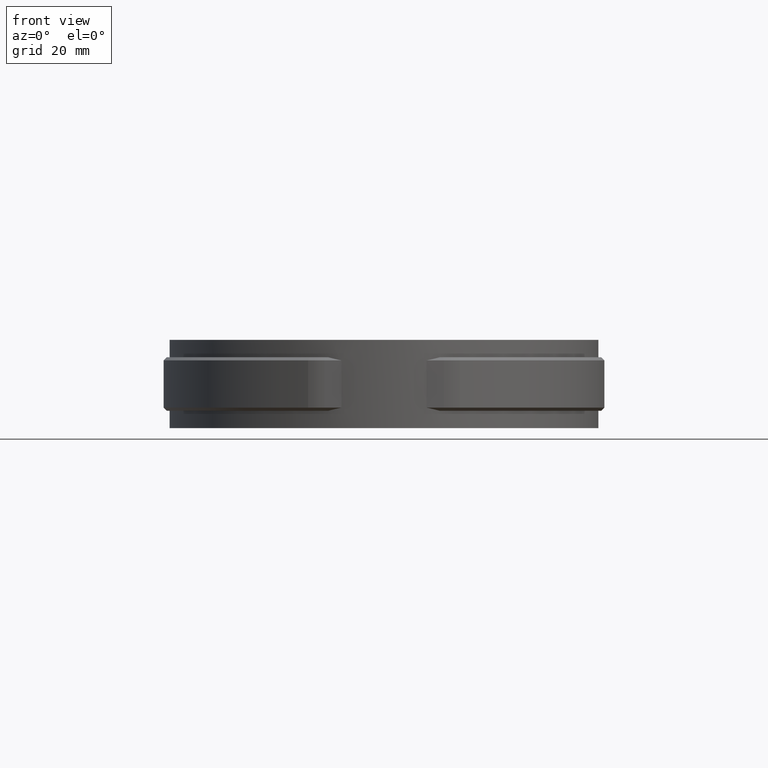
[diagram: clean part render]
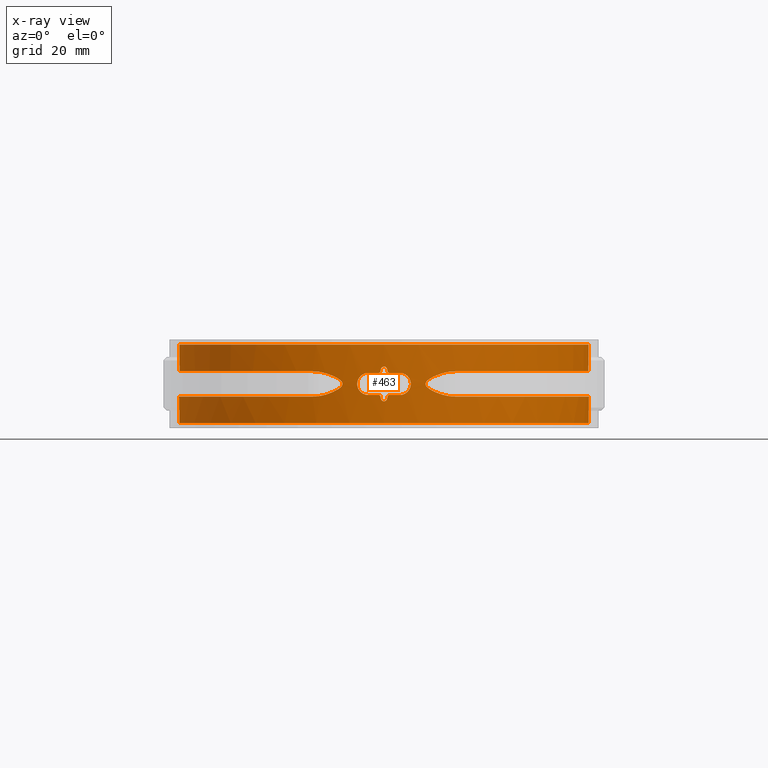
[diagram: x-ray — body ghosted, one internal face saturated and labeled with its STEP entity id]
A machine part, front view, then the same camera in x-ray: the body is ghosted and one INTERNAL B-rep face — a face not visible from any outside direction — is saturated and labeled: STEP entity #463.
In plain terms, the highlighted cylindrical surface (partial cylindrical patch) has radius 65 mm, axis along (0, 0, -1).
Its self-contained STEP definition (entity closure, byte-faithful):
#463 = ADVANCED_FACE( '', ( #815, #816 ), #817, .F. );
#815 = FACE_BOUND( '', #1555, .T. );
#816 = FACE_OUTER_BOUND( '', #1556, .T. );
#817 = CYLINDRICAL_SURFACE( '', #1557, 65.0000000000000 );
#1555 = EDGE_LOOP( '', ( #3140, #3141, #3142, #3143, #3144, #3145, #3146, #3147, #3148, #3149, #3150, #3151, #3152, #3153, #3154, #3155 ) );
#1556 = EDGE_LOOP( '', ( #3156, #3157, #3158, #3159, #3160, #3161, #3162, #3163, #3164, #3165, #3166, #3167, #3168, #3169, #3170, #3171 ) );
#1557 = AXIS2_PLACEMENT_3D( '', #3172, #3173, #3174 );
#3140 = ORIENTED_EDGE( '', *, *, #6882, .F. );
#3141 = ORIENTED_EDGE( '', *, *, #6883, .F. );
#3142 = ORIENTED_EDGE( '', *, *, #6884, .F. );
#3143 = ORIENTED_EDGE( '', *, *, #6885, .F. );
#3144 = ORIENTED_EDGE( '', *, *, #6886, .F. );
#3145 = ORIENTED_EDGE( '', *, *, #6887, .F. );
#3146 = ORIENTED_EDGE( '', *, *, #6888, .F. );
#3147 = ORIENTED_EDGE( '', *, *, #6889, .F. );
#3148 = ORIENTED_EDGE( '', *, *, #6890, .F. );
#3149 = ORIENTED_EDGE( '', *, *, #6891, .F. );
#3150 = ORIENTED_EDGE( '', *, *, #6892, .F. );
#3151 = ORIENTED_EDGE( '', *, *, #6893, .F. );
#3152 = ORIENTED_EDGE( '', *, *, #6894, .F. );
#3153 = ORIENTED_EDGE( '', *, *, #6895, .F. );
#3154 = ORIENTED_EDGE( '', *, *, #6879, .F. );
#3155 = ORIENTED_EDGE( '', *, *, #6875, .F. );
#3156 = ORIENTED_EDGE( '', *, *, #6896, .F. );
#3157 = ORIENTED_EDGE( '', *, *, #6897, .F. );
#3158 = ORIENTED_EDGE( '', *, *, #6898, .T. );
#3159 = ORIENTED_EDGE( '', *, *, #6899, .T. );
#3160 = ORIENTED_EDGE( '', *, *, #6900, .T. );
#3161 = ORIENTED_EDGE( '', *, *, #6901, .T. );
#3162 = ORIENTED_EDGE( '', *, *, #6902, .T. );
#3163 = ORIENTED_EDGE( '', *, *, #6903, .T. );
#3164 = ORIENTED_EDGE( '', *, *, #6904, .T. );
#3165 = ORIENTED_EDGE( '', *, *, #6905, .T. );
#3166 = ORIENTED_EDGE( '', *, *, #6906, .F. );
#3167 = ORIENTED_EDGE( '', *, *, #6907, .F. );
#3168 = ORIENTED_EDGE( '', *, *, #6908, .F. );
#3169 = ORIENTED_EDGE( '', *, *, #6909, .F. );
#3170 = ORIENTED_EDGE( '', *, *, #6910, .F. );
#3171 = ORIENTED_EDGE( '', *, *, #6911, .F. );
#3172 = CARTESIAN_POINT( '', ( 0.000000000000000, 0.000000000000000, -12.5000000000000 ) );
#3173 = DIRECTION( '', ( 0.000000000000000, 0.000000000000000, -1.00000000000000 ) );
#3174 = DIRECTION( '', ( -1.00000000000000, 5.93458031255224E-017, 0.000000000000000 ) );
#6875 = EDGE_CURVE( '', #7799, #7800, #7801, .T. );
#6879 = EDGE_CURVE( '', #7800, #7807, #7808, .T. );
#6882 = EDGE_CURVE( '', #7812, #7799, #7813, .T. );
#6883 = EDGE_CURVE( '', #7814, #7812, #7815, .T. );
#6884 = EDGE_CURVE( '', #7816, #7814, #7817, .T. );
#6885 = EDGE_CURVE( '', #7818, #7816, #7819, .T. );
#6886 = EDGE_CURVE( '', #7820, #7818, #7821, .T. );
#6887 = EDGE_CURVE( '', #7822, #7820, #7823, .T. );
#6888 = EDGE_CURVE( '', #7824, #7822, #7825, .T. );
#6889 = EDGE_CURVE( '', #7826, #7824, #7827, .T. );
#6890 = EDGE_CURVE( '', #7828, #7826, #7829, .T. );
#6891 = EDGE_CURVE( '', #7830, #7828, #7831, .T. );
#6892 = EDGE_CURVE( '', #7832, #7830, #7833, .T. );
#6893 = EDGE_CURVE( '', #7834, #7832, #7835, .T. );
#6894 = EDGE_CURVE( '', #7836, #7834, #7837, .T. );
#6895 = EDGE_CURVE( '', #7807, #7836, #7838, .T. );
#6896 = EDGE_CURVE( '', #7839, #7840, #7841, .T. );
#6897 = EDGE_CURVE( '', #7842, #7839, #7843, .T. );
#6898 = EDGE_CURVE( '', #7842, #7844, #7845, .T. );
#6899 = EDGE_CURVE( '', #7844, #7846, #7847, .T. );
#6900 = EDGE_CURVE( '', #7846, #7848, #7849, .T. );
#6901 = EDGE_CURVE( '', #7848, #7850, #7851, .T. );
#6902 = EDGE_CURVE( '', #7850, #7852, #7853, .T. );
#6903 = EDGE_CURVE( '', #7852, #7854, #7855, .T. );
#6904 = EDGE_CURVE( '', #7854, #7856, #7857, .T. );
#6905 = EDGE_CURVE( '', #7856, #7858, #7859, .T. );
#6906 = EDGE_CURVE( '', #7860, #7858, #7861, .T. );
#6907 = EDGE_CURVE( '', #7862, #7860, #7863, .T. );
#6908 = EDGE_CURVE( '', #7864, #7862, #7865, .T. );
#6909 = EDGE_CURVE( '', #7866, #7864, #7867, .T. );
#6910 = EDGE_CURVE( '', #7868, #7866, #7869, .T. );
#6911 = EDGE_CURVE( '', #7840, #7868, #7870, .T. );
#7799 = VERTEX_POINT( '', #9326 );
#7800 = VERTEX_POINT( '', #9327 );
#7801 = B_SPLINE_CURVE_WITH_KNOTS( '', 3, ( #9328, #9329, #9330, #9331, #9332, #9333 ), .UNSPECIFIED., .F., .F., ( 4, 2, 4 ), ( 0.000000000000000, 0.000335820475715399, 0.000671640951430799 ), .UNSPECIFIED. );
#7807 = VERTEX_POINT( '', #9346 );
#7808 = ELLIPSE( '', #9347, 296.111413217462, 65.0000000000000 );
#7812 = VERTEX_POINT( '', #9352 );
#7813 = CIRCLE( '', #9353, 65.0000000000000 );
#7814 = VERTEX_POINT( '', #9354 );
#7815 = B_SPLINE_CURVE_WITH_KNOTS( '', 3, ( #9355, #9356, #9357, #9358, #9359, #9360, #9361, #9362, #9363, #9364, #9365, #9366, #9367, #9368, #9369, #9370, #9371, #9372, #9373, #9374, #9375, #9376, #9377, #9378, #9379, #9380, #9381, #9382, #9383, #9384, #9385, #9386, #9387, #9388 ), .UNSPECIFIED., .F., .F., ( 4, 2, 2, 2, 2, 2, 2, 2, 2, 2, 2, 2, 2, 2, 2, 2, 4 ), ( 0.000000000000000, 0.000685481662145243, 0.00137096332429049, 0.00205644498643573, 0.00274192664858097, 0.00342740831072621, 0.00411288997287146, 0.00479837163501670, 0.00548385329716194, 0.00616933495930718, 0.00685481662145243, 0.00754029828359767, 0.00822577994574291, 0.00891126160788815, 0.00959674327003339, 0.0102822249321786, 0.0109677065943239 ), .UNSPECIFIED. );
#7816 = VERTEX_POINT( '', #9389 );
#7817 = CIRCLE( '', #9390, 65.0000000000000 );
#7818 = VERTEX_POINT( '', #9391 );
#7819 = B_SPLINE_CURVE_WITH_KNOTS( '', 3, ( #9392, #9393, #9394, #9395, #9396, #9397 ), .UNSPECIFIED., .F., .F., ( 4, 2, 4 ), ( 0.000000000000000, 0.000335821476681928, 0.000671642953363857 ), .UNSPECIFIED. );
#7820 = VERTEX_POINT( '', #9398 );
#7821 = ELLIPSE( '', #9399, 296.111262164252, 65.0000000000000 );
#7822 = VERTEX_POINT( '', #9400 );
#7823 = B_SPLINE_CURVE_WITH_KNOTS( '', 3, ( #9401, #9402, #9403, #9404, #9405, #9406, #9407, #9408, #9409, #9410 ), .UNSPECIFIED., .F., .F., ( 4, 2, 2, 2, 4 ), ( 0.000000000000000, 0.000671557045387639, 0.00134311409077528, 0.00201467113616292, 0.00268622818155056 ), .UNSPECIFIED. );
#7824 = VERTEX_POINT( '', #9411 );
#7825 = ELLIPSE( '', #9412, 296.111413217524, 65.0000000000000 );
#7826 = VERTEX_POINT( '', #9413 );
#7827 = B_SPLINE_CURVE_WITH_KNOTS( '', 3, ( #9414, #9415, #9416, #9417, #9418, #9419 ), .UNSPECIFIED., .F., .F., ( 4, 2, 4 ), ( 0.000000000000000, 0.000335820475715418, 0.000671640951430837 ), .UNSPECIFIED. );
#7828 = VERTEX_POINT( '', #9420 );
#7829 = CIRCLE( '', #9421, 65.0000000000000 );
#7830 = VERTEX_POINT( '', #9422 );
#7831 = B_SPLINE_CURVE_WITH_KNOTS( '', 3, ( #9423, #9424, #9425, #9426, #9427, #9428, #9429, #9430, #9431, #9432, #9433, #9434, #9435, #9436, #9437, #9438, #9439, #9440, #9441, #9442, #9443, #9444, #9445, #9446, #9447, #9448, #9449, #9450, #9451, #9452, #9453, #9454, #9455, #9456 ), .UNSPECIFIED., .F., .F., ( 4, 2, 2, 2, 2, 2, 2, 2, 2, 2, 2, 2, 2, 2, 2, 2, 4 ), ( 0.000000000000000, 0.000685481662145236, 0.00137096332429047, 0.00205644498643571, 0.00274192664858094, 0.00342740831072618, 0.00411288997287142, 0.00479837163501666, 0.00548385329716190, 0.00616933495930714, 0.00685481662145238, 0.00754029828359762, 0.00822577994574286, 0.00891126160788810, 0.00959674327003334, 0.0102822249321786, 0.0109677065943238 ), .UNSPECIFIED. );
#7832 = VERTEX_POINT( '', #9457 );
#7833 = CIRCLE( '', #9458, 65.0000000000000 );
#7834 = VERTEX_POINT( '', #9459 );
#7835 = B_SPLINE_CURVE_WITH_KNOTS( '', 3, ( #9460, #9461, #9462, #9463, #9464, #9465 ), .UNSPECIFIED., .F., .F., ( 4, 2, 4 ), ( 0.000000000000000, 0.000335821476681875, 0.000671642953363749 ), .UNSPECIFIED. );
#7836 = VERTEX_POINT( '', #9466 );
#7837 = ELLIPSE( '', #9467, 296.111262164231, 65.0000000000000 );
#7838 = B_SPLINE_CURVE_WITH_KNOTS( '', 3, ( #9468, #9469, #9470, #9471, #9472, #9473, #9474, #9475, #9476, #9477 ), .UNSPECIFIED., .F., .F., ( 4, 2, 2, 2, 4 ), ( 1.08420217248550E-019, 0.000671557045387639, 0.00134311409077528, 0.00201467113616292, 0.00268622818155055 ), .UNSPECIFIED. );
#7839 = VERTEX_POINT( '', #9478 );
#7840 = VERTEX_POINT( '', #9479 );
#7841 = B_SPLINE_CURVE_WITH_KNOTS( '', 3, ( #9480, #9481, #9482, #9483, #9484, #9485, #9486, #9487, #9488, #9489, #9490, #9491, #9492, #9493, #9494, #9495, #9496, #9497, #9498, #9499, #9500, #9501, #9502, #9503, #9504, #9505, #9506, #9507, #9508, #9509, #9510, #9511, #9512, #9513, #9514, #9515, #9516, #9517, #9518, #9519, #9520, #9521, #9522, #9523, #9524, #9525, #9526, #9527, #9528, #9529, #9530, #9531, #9532, #9533, #9534, #9535, #9536, #9537, #9538, #9539, #9540, #9541, #9542, #9543, #9544, #9545 ), .UNSPECIFIED., .F., .F., ( 4, 2, 2, 2, 2, 2, 2, 2, 2, 2, 2, 2, 2, 2, 2, 2, 2, 2, 2, 2, 2, 2, 2, 2, 2, 2, 2, 2, 2, 2, 2, 2, 4 ), ( 0.000000000000000, 0.00547800888488965, 0.00821701332733447, 0.0109560177697793, 0.0219120355395586, 0.0273900444244482, 0.0301290488668930, 0.0328680533093379, 0.0438240710791172, 0.0493020799640069, 0.0520410844064517, 0.0547800888488966, 0.0657361066186760, 0.0712141155035657, 0.0739531199460106, 0.0766921243884554, 0.0876481421582348, 0.0931261510431245, 0.0958651554855694, 0.0986041599280142, 0.109560177697794, 0.115038186582683, 0.117777191025128, 0.120516195467573, 0.131472213237352, 0.136950222122242, 0.139689226564687, 0.142428231007132, 0.153384248776911, 0.158862257661801, 0.161601262104246, 0.164340266546691, 0.175296284316470 ), .UNSPECIFIED. );
#7842 = VERTEX_POINT( '', #9546 );
#7843 = LINE( '', #9547, #9548 );
#7844 = VERTEX_POINT( '', #9549 );
#7845 = CIRCLE( '', #9550, 65.0000000000000 );
#7846 = VERTEX_POINT( '', #9551 );
#7847 = LINE( '', #9552, #9553 );
#7848 = VERTEX_POINT( '', #9554 );
#7849 = B_SPLINE_CURVE_WITH_KNOTS( '', 3, ( #9555, #9556, #9557, #9558, #9559, #9560, #9561, #9562, #9563, #9564, #9565, #9566, #9567, #9568, #9569, #9570, #9571, #9572, #9573, #9574, #9575, #9576, #9577, #9578, #9579, #9580, #9581, #9582, #9583, #9584, #9585, #9586, #9587, #9588, #9589, #9590, #9591, #9592, #9593, #9594, #9595, #9596, #9597, #9598, #9599, #9600, #9601, #9602, #9603, #9604, #9605, #9606, #9607, #9608, #9609, #9610, #9611, #9612, #9613, #9614, #9615, #9616, #9617, #9618 ), .UNSPECIFIED., .F., .F., ( 4, 2, 2, 2, 2, 2, 2, 2, 2, 2, 2, 2, 2, 2, 2, 2, 2, 2, 2, 2, 2, 2, 2, 2, 2, 2, 2, 2, 2, 2, 2, 4 ), ( 0.00471593343825341, 0.0101955523853328, 0.0156751713324121, 0.0266344092265708, 0.0293742187001105, 0.0321140281736501, 0.0375936471207295, 0.0485528850148881, 0.0512926944884278, 0.0540325039619675, 0.0595121229090468, 0.0704713608032055, 0.0732111702767452, 0.0759509797502849, 0.0814305986973642, 0.0923898365915230, 0.0951296460650626, 0.0978694555386023, 0.103349074485682, 0.114308312379840, 0.117048121853380, 0.119787931326920, 0.125267550273999, 0.136226788168158, 0.138966597641697, 0.141706407115237, 0.147186026062316, 0.158145263956475, 0.160885073430015, 0.163624882903555, 0.169104501850634, 0.180063739744793 ), .UNSPECIFIED. );
#7850 = VERTEX_POINT( '', #9619 );
#7851 = B_SPLINE_CURVE_WITH_KNOTS( '', 3, ( #9620, #9621, #9622, #9623, #9624, #9625 ), .UNSPECIFIED., .F., .F., ( 4, 2, 4 ), ( 0.000000000000000, 0.00223286741373582, 0.00446573482747164 ), .UNSPECIFIED. );
#7852 = VERTEX_POINT( '', #9626 );
#7853 = B_SPLINE_CURVE_WITH_KNOTS( '', 3, ( #9627, #9628, #9629, #9630, #9631, #9632, #9633, #9634, #9635, #9636, #9637, #9638, #9639, #9640, #9641, #9642, #9643, #9644, #9645, #9646, #9647, #9648, #9649, #9650, #9651, #9652, #9653, #9654, #9655, #9656 ), .UNSPECIFIED., .F., .F., ( 4, 2, 2, 2, 2, 2, 2, 2, 2, 2, 2, 2, 2, 2, 4 ), ( 0.000000000000000, 0.00166440431603372, 0.00332880863206744, 0.00416101079008430, 0.00499321294810116, 0.00582541510611803, 0.00624151618512646, 0.00665761726413490, 0.00707371834314334, 0.00748981942215177, 0.00832202158016864, 0.00915422373818551, 0.00998642589620238, 0.0116508302122361, 0.0133152345282699 ), .UNSPECIFIED. );
#7854 = VERTEX_POINT( '', #9657 );
#7855 = B_SPLINE_CURVE_WITH_KNOTS( '', 3, ( #9658, #9659, #9660, #9661, #9662, #9663 ), .UNSPECIFIED., .F., .F., ( 4, 2, 4 ), ( 0.000000000000000, 0.00223118849355286, 0.00446237698710572 ), .UNSPECIFIED. );
#7856 = VERTEX_POINT( '', #9664 );
#7857 = B_SPLINE_CURVE_WITH_KNOTS( '', 3, ( #9665, #9666, #9667, #9668, #9669, #9670, #9671, #9672, #9673, #9674, #9675, #9676, #9677, #9678, #9679, #9680, #9681, #9682, #9683, #9684, #9685, #9686, #9687, #9688, #9689, #9690, #9691, #9692, #9693, #9694, #9695, #9696, #9697, #9698, #9699, #9700, #9701, #9702, #9703, #9704, #9705, #9706, #9707, #9708, #9709, #9710, #9711, #9712, #9713, #9714, #9715, #9716, #9717, #9718, #9719, #9720, #9721, #9722, #9723, #9724, #9725, #9726, #9727, #9728, #9729, #9730 ), .UNSPECIFIED., .F., .F., ( 4, 2, 2, 2, 2, 2, 2, 2, 2, 2, 2, 2, 2, 2, 2, 2, 2, 2, 2, 2, 2, 2, 2, 2, 2, 2, 2, 2, 2, 2, 2, 2, 4 ), ( 0.000000000000000, 0.00547933246747256, 0.00821899870120884, 0.0109586649349451, 0.0219173298698902, 0.0273966623373628, 0.0301363285710990, 0.0328759948048353, 0.0438346597397804, 0.0493139922072530, 0.0520536584409892, 0.0547933246747255, 0.0657519896096706, 0.0712313220771432, 0.0739709883108794, 0.0767106545446157, 0.0876693194795608, 0.0931486519470333, 0.0958883181807696, 0.0986279844145059, 0.109586649349451, 0.115065981816924, 0.117805648050660, 0.120545314284396, 0.131503979219341, 0.136983311686814, 0.139722977920550, 0.142462644154286, 0.153421309089231, 0.158900641556704, 0.161640307790440, 0.164379974024177, 0.175338638959122 ), .UNSPECIFIED. );
#7858 = VERTEX_POINT( '', #9731 );
#7859 = LINE( '', #9732, #9733 );
#7860 = VERTEX_POINT( '', #9734 );
#7861 = CIRCLE( '', #9735, 65.0000000000000 );
#7862 = VERTEX_POINT( '', #9736 );
#7863 = LINE( '', #9737, #9738 );
#7864 = VERTEX_POINT( '', #9739 );
#7865 = B_SPLINE_CURVE_WITH_KNOTS( '', 3, ( #9740, #9741, #9742, #9743, #9744, #9745, #9746, #9747, #9748, #9749, #9750, #9751, #9752, #9753, #9754, #9755, #9756, #9757, #9758, #9759, #9760, #9761, #9762, #9763, #9764, #9765, #9766, #9767, #9768, #9769, #9770, #9771, #9772, #9773, #9774, #9775, #9776, #9777, #9778, #9779, #9780, #9781, #9782, #9783, #9784, #9785, #9786, #9787, #9788, #9789, #9790, #9791, #9792, #9793, #9794, #9795, #9796, #9797, #9798, #9799, #9800, #9801, #9802, #9803, #9804, #9805 ), .UNSPECIFIED., .F., .F., ( 4, 2, 2, 2, 2, 2, 2, 2, 2, 2, 2, 2, 2, 2, 2, 2, 2, 2, 2, 2, 2, 2, 2, 2, 2, 2, 2, 2, 2, 2, 2, 2, 4 ), ( 0.000000000000000, 0.00547933246747257, 0.00821899870120884, 0.0109586649349451, 0.0219173298698902, 0.0273966623373628, 0.0301363285710991, 0.0328759948048354, 0.0438346597397805, 0.0493139922072530, 0.0520536584409893, 0.0547933246747256, 0.0657519896096706, 0.0712313220771432, 0.0739709883108794, 0.0767106545446157, 0.0876693194795608, 0.0931486519470333, 0.0958883181807696, 0.0986279844145058, 0.109586649349451, 0.115065981816923, 0.117805648050660, 0.120545314284396, 0.131503979219341, 0.136983311686813, 0.139722977920550, 0.142462644154286, 0.153421309089231, 0.158900641556703, 0.161640307790440, 0.164379974024176, 0.175338638959121 ), .UNSPECIFIED. );
#7866 = VERTEX_POINT( '', #9806 );
#7867 = B_SPLINE_CURVE_WITH_KNOTS( '', 3, ( #9807, #9808, #9809, #9810, #9811, #9812 ), .UNSPECIFIED., .F., .F., ( 4, 2, 4 ), ( 0.000000000000000, 0.00223118849355286, 0.00446237698710572 ), .UNSPECIFIED. );
#7868 = VERTEX_POINT( '', #9813 );
#7869 = B_SPLINE_CURVE_WITH_KNOTS( '', 3, ( #9814, #9815, #9816, #9817, #9818, #9819, #9820, #9821, #9822, #9823, #9824, #9825, #9826, #9827, #9828, #9829, #9830, #9831, #9832, #9833, #9834, #9835, #9836, #9837, #9838, #9839, #9840, #9841, #9842, #9843 ), .UNSPECIFIED., .F., .F., ( 4, 2, 2, 2, 2, 2, 2, 2, 2, 2, 2, 2, 2, 2, 4 ), ( 0.000000000000000, 0.00166440431603372, 0.00332880863206744, 0.00416101079008430, 0.00499321294810116, 0.00582541510611803, 0.00624151618512646, 0.00665761726413490, 0.00707371834314334, 0.00748981942215177, 0.00832202158016864, 0.00915422373818551, 0.00998642589620238, 0.0116508302122361, 0.0133152345282699 ), .UNSPECIFIED. );
#7870 = B_SPLINE_CURVE_WITH_KNOTS( '', 3, ( #9844, #9845, #9846, #9847, #9848, #9849 ), .UNSPECIFIED., .F., .F., ( 4, 2, 4 ), ( 0.000000000000000, 0.00223286741373582, 0.00446573482747164 ), .UNSPECIFIED. );
#9326 = CARTESIAN_POINT( '', ( 1.64999999999997, -64.9790543175260, -3.50000000000001 ) );
#9327 = CARTESIAN_POINT( '', ( 1.16219512100908, -64.9896091887057, -3.89024390662628 ) );
#9328 = CARTESIAN_POINT( '', ( 1.64999999999997, -64.9790543175260, -3.50000000000001 ) );
#9329 = CARTESIAN_POINT( '', ( 1.53648511039280, -64.9819367781869, -3.50000000000001 ) );
#9330 = CARTESIAN_POINT( '', ( 1.42633633701763, -64.9844091183687, -3.53862763739567 ) );
#9331 = CARTESIAN_POINT( '', ( 1.24901764848702, -64.9880590472095, -3.68046432923863 ) );
#9332 = CARTESIAN_POINT( '', ( 1.18712104509495, -64.9891634437979, -3.77946201735983 ) );
#9333 = CARTESIAN_POINT( '', ( 1.16219512100908, -64.9896091887057, -3.89024390662628 ) );
#9346 = CARTESIAN_POINT( '', ( 0.975609999999945, -64.9926779347328, -4.71951199999998 ) );
#9347 = AXIS2_PLACEMENT_3D( '', #13494, #13495, #13496 );
#9352 = CARTESIAN_POINT( '', ( 4.99999999999999, -64.8074069840786, -3.50000000000000 ) );
#9353 = AXIS2_PLACEMENT_3D( '', #13501, #13502, #13503 );
#9354 = CARTESIAN_POINT( '', ( 4.99999999999999, -64.8074069840786, 3.50000000000001 ) );
#9355 = CARTESIAN_POINT( '', ( 4.99999999999999, -64.8074069840786, 3.50000000000001 ) );
#9356 = CARTESIAN_POINT( '', ( 5.23110497321943, -64.7895768482983, 3.50000000000001 ) );
#9357 = CARTESIAN_POINT( '', ( 5.45825581458683, -64.7708091891651, 3.47733576795633 ) );
#9358 = CARTESIAN_POINT( '', ( 5.90500137187215, -64.7316092674583, 3.38863319815240 ) );
#9359 = CARTESIAN_POINT( '', ( 6.12687628027488, -64.7109466700041, 3.32153984260623 ) );
#9360 = CARTESIAN_POINT( '', ( 6.55020478215911, -64.6694676736533, 3.14632201315088 ) );
#9361 = CARTESIAN_POINT( '', ( 6.75096944034366, -64.6487503857619, 3.03911774134309 ) );
#9362 = CARTESIAN_POINT( '', ( 7.13096129442700, -64.6079399597479, 2.78588129474637 ) );
#9363 = CARTESIAN_POINT( '', ( 7.31102597676499, -64.5877335458622, 2.63841084659075 ) );
#9364 = CARTESIAN_POINT( '', ( 7.63398839587837, -64.5503574474674, 2.31606519577243 ) );
#9365 = CARTESIAN_POINT( '', ( 7.77896489139714, -64.5329710873359, 2.14015281230742 ) );
#9366 = CARTESIAN_POINT( '', ( 8.03513454298874, -64.5015756785568, 1.75808368219543 ) );
#9367 = CARTESIAN_POINT( '', ( 8.14434641808385, -64.4878082898620, 1.55407902958624 ) );
#9368 = CARTESIAN_POINT( '', ( 8.31952127960676, -64.4654431636510, 1.13263167064775 ) );
#9369 = CARTESIAN_POINT( '', ( 8.38692754736601, -64.4566639649980, 0.912190067447012 ) );
#9370 = CARTESIAN_POINT( '', ( 8.47743995463778, -64.4448220960920, 0.459108148636642 ) );
#9371 = CARTESIAN_POINT( '', ( 8.49982377270403, -64.4418574830382, 0.231441218119742 ) );
#9372 = CARTESIAN_POINT( '', ( 8.50017417435057, -64.4418112644029, -0.226080133223282 ) );
#9373 = CARTESIAN_POINT( '', ( 8.47742170390063, -64.4448241711272, -0.458442744123982 ) );
#9374 = CARTESIAN_POINT( '', ( 8.38782619464384, -64.4565467033544, -0.908441044473504 ) );
#9375 = CARTESIAN_POINT( '', ( 8.32153387413267, -64.4651837359196, -1.12699291302186 ) );
#9376 = CARTESIAN_POINT( '', ( 8.14587144231242, -64.4876160093512, -1.55119088814222 ) );
#9377 = CARTESIAN_POINT( '', ( 8.03604926988183, -64.5014592294685, -1.75626160543871 ) );
#9378 = CARTESIAN_POINT( '', ( 7.78236594698429, -64.5325585333944, -2.13553031656082 ) );
#9379 = CARTESIAN_POINT( '', ( 7.63762732374061, -64.5499316485166, -2.31219320133699 ) );
#9380 = CARTESIAN_POINT( '', ( 7.31101074103860, -64.5877399272411, -2.63866342189683 ) );
#9381 = CARTESIAN_POINT( '', ( 7.13417871330392, -64.6075827214080, -2.78336618520895 ) );
#9382 = CARTESIAN_POINT( '', ( 6.75556446645750, -64.6482683430613, -3.03641886198132 ) );
#9383 = CARTESIAN_POINT( '', ( 6.55128507524559, -64.6693582333927, -3.14579154365692 ) );
#9384 = CARTESIAN_POINT( '', ( 6.12796394105535, -64.7108436693043, -3.32117255927812 ) );
#9385 = CARTESIAN_POINT( '', ( 5.91014693724946, -64.7311416127118, -3.38729712077577 ) );
#9386 = CARTESIAN_POINT( '', ( 5.46228714202525, -64.7704712850145, -3.47684337152518 ) );
#9387 = CARTESIAN_POINT( '', ( 5.23110311102657, -64.7895769919696, -3.50000000000000 ) );
#9388 = CARTESIAN_POINT( '', ( 4.99999999999999, -64.8074069840786, -3.50000000000000 ) );
#9389 = CARTESIAN_POINT( '', ( 1.65000000000000, -64.9790543175260, 3.50000000000001 ) );
#9390 = AXIS2_PLACEMENT_3D( '', #13504, #13505, #13506 );
#9391 = CARTESIAN_POINT( '', ( 1.16219499999994, -64.9896091908697, 3.89024400000001 ) );
#9392 = CARTESIAN_POINT( '', ( 1.16219499999994, -64.9896091908697, 3.89024400000001 ) );
#9393 = CARTESIAN_POINT( '', ( 1.18712093062054, -64.9891634458914, 3.77946208391049 ) );
#9394 = CARTESIAN_POINT( '', ( 1.24901673281049, -64.9880590654449, 3.68046516360086 ) );
#9395 = CARTESIAN_POINT( '', ( 1.42633635463780, -64.9844091186189, 3.53862744931851 ) );
#9396 = CARTESIAN_POINT( '', ( 1.53648508269601, -64.9819367788902, 3.49999999951279 ) );
#9397 = CARTESIAN_POINT( '', ( 1.65000000000000, -64.9790543175260, 3.49999999999999 ) );
#9398 = CARTESIAN_POINT( '', ( 0.975609757981777, -64.9926779383657, 4.71951218674745 ) );
#9399 = AXIS2_PLACEMENT_3D( '', #13507, #13508, #13509 );
#9400 = CARTESIAN_POINT( '', ( -0.975610000000056, -64.9926779347328, 4.71951200000000 ) );
#9401 = CARTESIAN_POINT( '', ( -0.975610000000056, -64.9926779347328, 4.71951200000000 ) );
#9402 = CARTESIAN_POINT( '', ( -0.925764416982517, -64.9934261705463, 4.94104803240721 ) );
#9403 = CARTESIAN_POINT( '', ( -0.802007343164189, -64.9952938760589, 5.13901837958929 ) );
#9404 = CARTESIAN_POINT( '', ( -0.447386928703855, -64.9987021928113, 5.42271613436348 ) );
#9405 = CARTESIAN_POINT( '', ( -0.227075334432468, -65.0000000001938, 5.50000003873849 ) );
#9406 = CARTESIAN_POINT( '', ( 0.227075445385603, -64.9999999998062, 5.49999996812868 ) );
#9407 = CARTESIAN_POINT( '', ( 0.447391507093894, -64.9987021542428, 5.42271312800360 ) );
#9408 = CARTESIAN_POINT( '', ( 0.802006749307461, -64.9952938763312, 5.13901787829437 ) );
#9409 = CARTESIAN_POINT( '', ( 0.925764132501308, -64.9934261746310, 4.94104820986836 ) );
#9410 = CARTESIAN_POINT( '', ( 0.975609757981777, -64.9926779383657, 4.71951218674745 ) );
#9411 = CARTESIAN_POINT( '', ( -1.16219512100915, -64.9896091887057, 3.89024390662630 ) );
#9412 = AXIS2_PLACEMENT_3D( '', #13510, #13511, #13512 );
#9413 = CARTESIAN_POINT( '', ( -1.65000000000007, -64.9790543175260, 3.50000000000001 ) );
#9414 = CARTESIAN_POINT( '', ( -1.65000000000007, -64.9790543175260, 3.50000000000001 ) );
#9415 = CARTESIAN_POINT( '', ( -1.53648511039289, -64.9819367781869, 3.50000000000001 ) );
#9416 = CARTESIAN_POINT( '', ( -1.42633633701771, -64.9844091183687, 3.53862763739567 ) );
#9417 = CARTESIAN_POINT( '', ( -1.24901764848709, -64.9880590472095, 3.68046432923864 ) );
#9418 = CARTESIAN_POINT( '', ( -1.18712104509502, -64.9891634437979, 3.77946201735985 ) );
#9419 = CARTESIAN_POINT( '', ( -1.16219512100915, -64.9896091887057, 3.89024390662630 ) );
#9420 = CARTESIAN_POINT( '', ( -5.00000000000000, -64.8074069840786, 3.50000000000001 ) );
#9421 = AXIS2_PLACEMENT_3D( '', #13513, #13514, #13515 );
#9422 = CARTESIAN_POINT( '', ( -5.00000000000000, -64.8074069840786, -3.49999999999998 ) );
#9423 = CARTESIAN_POINT( '', ( -5.00000000000000, -64.8074069840786, -3.49999999999998 ) );
#9424 = CARTESIAN_POINT( '', ( -5.23110497321944, -64.7895768482983, -3.49999999999998 ) );
#9425 = CARTESIAN_POINT( '', ( -5.45825581458684, -64.7708091891651, -3.47733576795629 ) );
#9426 = CARTESIAN_POINT( '', ( -5.90500137187216, -64.7316092674583, -3.38863319815237 ) );
#9427 = CARTESIAN_POINT( '', ( -6.12687628027488, -64.7109466700041, -3.32153984260620 ) );
#9428 = CARTESIAN_POINT( '', ( -6.55020478215911, -64.6694676736533, -3.14632201315085 ) );
#9429 = CARTESIAN_POINT( '', ( -6.75096944034367, -64.6487503857619, -3.03911774134305 ) );
#9430 = CARTESIAN_POINT( '', ( -7.13096129442700, -64.6079399597479, -2.78588129474634 ) );
#9431 = CARTESIAN_POINT( '', ( -7.31102597676499, -64.5877335458622, -2.63841084659072 ) );
#9432 = CARTESIAN_POINT( '', ( -7.63398839587837, -64.5503574474674, -2.31606519577240 ) );
#9433 = CARTESIAN_POINT( '', ( -7.77896489139714, -64.5329710873359, -2.14015281230739 ) );
#9434 = CARTESIAN_POINT( '', ( -8.03513454298874, -64.5015756785568, -1.75808368219540 ) );
#9435 = CARTESIAN_POINT( '', ( -8.14434641808385, -64.4878082898620, -1.55407902958622 ) );
#9436 = CARTESIAN_POINT( '', ( -8.31952127960676, -64.4654431636510, -1.13263167064773 ) );
#9437 = CARTESIAN_POINT( '', ( -8.38692754736601, -64.4566639649980, -0.912190067446991 ) );
#9438 = CARTESIAN_POINT( '', ( -8.47743995463777, -64.4448220960920, -0.459108148636623 ) );
#9439 = CARTESIAN_POINT( '', ( -8.49982377270402, -64.4418574830382, -0.231441218119724 ) );
#9440 = CARTESIAN_POINT( '', ( -8.50017417435057, -64.4418112644030, 0.226080133223298 ) );
#9441 = CARTESIAN_POINT( '', ( -8.47742170390063, -64.4448241711272, 0.458442744123996 ) );
#9442 = CARTESIAN_POINT( '', ( -8.38782619464384, -64.4565467033544, 0.908441044473516 ) );
#9443 = CARTESIAN_POINT( '', ( -8.32153387413266, -64.4651837359196, 1.12699291302188 ) );
#9444 = CARTESIAN_POINT( '', ( -8.14587144231242, -64.4876160093512, 1.55119088814223 ) );
#9445 = CARTESIAN_POINT( '', ( -8.03604926988182, -64.5014592294685, 1.75626160543872 ) );
#9446 = CARTESIAN_POINT( '', ( -7.78236594698429, -64.5325585333944, 2.13553031656082 ) );
#9447 = CARTESIAN_POINT( '', ( -7.63762732374061, -64.5499316485165, 2.31219320133700 ) );
#9448 = CARTESIAN_POINT( '', ( -7.31101074103860, -64.5877399272410, 2.63866342189683 ) );
#9449 = CARTESIAN_POINT( '', ( -7.13417871330392, -64.6075827214080, 2.78336618520895 ) );
#9450 = CARTESIAN_POINT( '', ( -6.75556446645751, -64.6482683430613, 3.03641886198133 ) );
#9451 = CARTESIAN_POINT( '', ( -6.55128507524560, -64.6693582333927, 3.14579154365692 ) );
#9452 = CARTESIAN_POINT( '', ( -6.12796394105536, -64.7108436693042, 3.32117255927812 ) );
#9453 = CARTESIAN_POINT( '', ( -5.91014693724947, -64.7311416127118, 3.38729712077578 ) );
#9454 = CARTESIAN_POINT( '', ( -5.46228714202526, -64.7704712850145, 3.47684337152518 ) );
#9455 = CARTESIAN_POINT( '', ( -5.23110311102658, -64.7895769919695, 3.50000000000000 ) );
#9456 = CARTESIAN_POINT( '', ( -5.00000000000000, -64.8074069840786, 3.50000000000000 ) );
#9457 = CARTESIAN_POINT( '', ( -1.65000000000001, -64.9790543175260, -3.49999999999998 ) );
#9458 = AXIS2_PLACEMENT_3D( '', #13516, #13517, #13518 );
#9459 = CARTESIAN_POINT( '', ( -1.16219500000006, -64.9896091908697, -3.89024399999997 ) );
#9460 = CARTESIAN_POINT( '', ( -1.16219500000006, -64.9896091908697, -3.89024399999997 ) );
#9461 = CARTESIAN_POINT( '', ( -1.18712093062065, -64.9891634458914, -3.77946208391047 ) );
#9462 = CARTESIAN_POINT( '', ( -1.24901673281058, -64.9880590654449, -3.68046516360085 ) );
#9463 = CARTESIAN_POINT( '', ( -1.42633635463786, -64.9844091186189, -3.53862744931851 ) );
#9464 = CARTESIAN_POINT( '', ( -1.53648508269604, -64.9819367788902, -3.49999999951279 ) );
#9465 = CARTESIAN_POINT( '', ( -1.65000000000001, -64.9790543175260, -3.49999999999999 ) );
#9466 = CARTESIAN_POINT( '', ( -0.975609757981888, -64.9926779383657, -4.71951218674742 ) );
#9467 = AXIS2_PLACEMENT_3D( '', #13519, #13520, #13521 );
#9468 = CARTESIAN_POINT( '', ( 0.975609999999946, -64.9926779347328, -4.71951199999998 ) );
#9469 = CARTESIAN_POINT( '', ( 0.925764416982405, -64.9934261705463, -4.94104803240718 ) );
#9470 = CARTESIAN_POINT( '', ( 0.802007343164076, -64.9952938760589, -5.13901837958927 ) );
#9471 = CARTESIAN_POINT( '', ( 0.447386928703739, -64.9987021928113, -5.42271613436345 ) );
#9472 = CARTESIAN_POINT( '', ( 0.227075334432352, -65.0000000001938, -5.50000003873847 ) );
#9473 = CARTESIAN_POINT( '', ( -0.227075445385719, -64.9999999998062, -5.49999996812864 ) );
#9474 = CARTESIAN_POINT( '', ( -0.447391507094009, -64.9987021542428, -5.42271312800356 ) );
#9475 = CARTESIAN_POINT( '', ( -0.802006749307574, -64.9952938763312, -5.13901787829434 ) );
#9476 = CARTESIAN_POINT( '', ( -0.925764132501420, -64.9934261746310, -4.94104820986832 ) );
#9477 = CARTESIAN_POINT( '', ( -0.975609757981888, -64.9926779383657, -4.71951218674742 ) );
#9478 = CARTESIAN_POINT( '', ( 6.69117647058820, 64.6546839559161, -3.99489371793504 ) );
#9479 = CARTESIAN_POINT( '', ( 22.6788495793338, -60.9152677313068, -3.99676078192788 ) );
#9480 = CARTESIAN_POINT( '', ( 6.69117647058820, 64.6546839559161, -3.99489371793504 ) );
#9481 = CARTESIAN_POINT( '', ( 8.51295605873538, 64.4661462047592, -3.99373132339096 ) );
#9482 = CARTESIAN_POINT( '', ( 10.3208073187337, 64.2013658414481, -3.99237202278120 ) );
#9483 = CARTESIAN_POINT( '', ( 13.0118786162350, 63.6908519709136, -3.99099200371240 ) );
#9484 = CARTESIAN_POINT( '', ( 13.9054468032183, 63.5017647086031, -3.99063478254839 ) );
#9485 = CARTESIAN_POINT( '', ( 15.6856476396780, 63.0856245909302, -3.99020054618200 ) );
#9486 = CARTESIAN_POINT( '', ( 16.5737379567466, 62.8581448163323, -3.99012384207785 ) );
#9487 = CARTESIAN_POINT( '', ( 20.9752729569122, 61.6311648286935, -3.99048178539430 ) );
#9488 = CARTESIAN_POINT( '', ( 24.3716771399746, 60.3665324156958, -3.99365328138722 ) );
#9489 = CARTESIAN_POINT( '', ( 29.2846053969836, 58.0576102450881, -3.99663907583660 ) );
#9490 = CARTESIAN_POINT( '', ( 30.8918058939105, 57.2189383988539, -3.99702186248302 ) );
#9491 = CARTESIAN_POINT( '', ( 33.2561805547601, 55.8556541509355, -3.99617154216580 ) );
#9492 = CARTESIAN_POINT( '', ( 34.0365576071475, 55.3836570073541, -3.99572534244122 ) );
#9493 = CARTESIAN_POINT( '', ( 35.5815605322595, 54.4039453288276, -3.99472241450879 ) );
#9494 = CARTESIAN_POINT( '', ( 36.3440047911378, 53.8975236535249, -3.99416751243541 ) );
#9495 = CARTESIAN_POINT( '', ( 40.0841438776220, 51.2985112205644, -3.99156904265169 ) );
#9496 = CARTESIAN_POINT( '', ( 42.8690315519578, 48.9928576602337, -3.99056542418248 ) );
#9497 = CARTESIAN_POINT( '', ( 46.7432876757527, 45.2031918036934, -3.99242481148135 ) );
#9498 = CARTESIAN_POINT( '', ( 47.9839264958089, 43.8844801386309, -3.99350128341582 ) );
#9499 = CARTESIAN_POINT( '', ( 49.7672641617505, 41.8215927195847, -3.99508416666504 ) );
#9500 = CARTESIAN_POINT( '', ( 50.3487563148299, 41.1198083764452, -3.99560000403182 ) );
#9501 = CARTESIAN_POINT( '', ( 51.4853753892817, 39.6874290473752, -3.99640789272669 ) );
#9502 = CARTESIAN_POINT( '', ( 52.0394623316576, 38.9579857844395, -3.99669796829096 ) );
#9503 = CARTESIAN_POINT( '', ( 54.7184746653545, 35.2728403828569, -3.99696202736287 ) );
#9504 = CARTESIAN_POINT( '', ( 56.5909191131821, 32.1794933169232, -3.99328543512255 ) );
#9505 = CARTESIAN_POINT( '', ( 59.0040691781972, 27.3273269725868, -3.99089331006829 ) );
#9506 = CARTESIAN_POINT( '', ( 59.7421832370143, 25.6743929321864, -3.99052203201426 ) );
#9507 = CARTESIAN_POINT( '', ( 60.7481200704441, 23.1406922000452, -3.99082232606458 ) );
#9508 = CARTESIAN_POINT( '', ( 61.0665378654171, 22.2870634879409, -3.99105884142201 ) );
#9509 = CARTESIAN_POINT( '', ( 61.6689985627411, 20.5613681950537, -3.99176064344953 ) );
#9510 = CARTESIAN_POINT( '', ( 61.9527332997844, 19.6898374859060, -3.99222612136997 ) );
#9511 = CARTESIAN_POINT( '', ( 63.2721440610225, 15.3274134311960, -3.99484358114341 ) );
#9512 = CARTESIAN_POINT( '', ( 64.0237908892520, 11.7900056874508, -3.99767177161317 ) );
#9513 = CARTESIAN_POINT( '', ( 64.7079198203423, 6.41464114423797, -3.99554066369833 ) );
#9514 = CARTESIAN_POINT( '', ( 64.8616793236778, 4.61124936973028, -3.99426086876674 ) );
#9515 = CARTESIAN_POINT( '', ( 64.9789122326302, 1.88844682835137, -3.99262010941827 ) );
#9516 = CARTESIAN_POINT( '', ( 64.9990640820361, 0.977889638515409, -3.99211411446931 ) );
#9517 = CARTESIAN_POINT( '', ( 65.0008722593350, -0.849238018086236, -3.99130319061573 ) );
#9518 = CARTESIAN_POINT( '', ( 64.9824027296704, -1.76600589239345, -3.99099915726147 ) );
#9519 = CARTESIAN_POINT( '', ( 64.7946304090232, -6.32130773549514, -3.99015493372705 ) );
#9520 = CARTESIAN_POINT( '', ( 64.3416364877488, -9.90969765128512, -3.99213847994139 ) );
#9521 = CARTESIAN_POINT( '', ( 63.2209661451454, -15.2109011251720, -3.99550631901288 ) );
#9522 = CARTESIAN_POINT( '', ( 62.7734869655247, -16.9643330046231, -3.99659343535451 ) );
#9523 = CARTESIAN_POINT( '', ( 61.9894830307312, -19.5736764203444, -3.99681709275075 ) );
#9524 = CARTESIAN_POINT( '', ( 61.7093262943919, -20.4399856334200, -3.99662750602678 ) );
#9525 = CARTESIAN_POINT( '', ( 61.1107405476287, -22.1655443001644, -3.99595314218647 ) );
#9526 = CARTESIAN_POINT( '', ( 60.7919010078883, -23.0255684514547, -3.99547031103554 ) );
#9527 = CARTESIAN_POINT( '', ( 59.1167615168234, -27.2675814551123, -3.99288296747773 ) );
#9528 = CARTESIAN_POINT( '', ( 57.5091475418842, -30.5081083621737, -3.99077905344838 ) );
#9529 = CARTESIAN_POINT( '', ( 54.7084292447739, -35.1461157352793, -3.99146119680704 ) );
#9530 = CARTESIAN_POINT( '', ( 53.7096262287845, -36.6547889090961, -3.99222386016447 ) );
#9531 = CARTESIAN_POINT( '', ( 52.1119601621560, -38.8608798531300, -3.99371961109979 ) );
#9532 = CARTESIAN_POINT( '', ( 51.5628062515587, -39.5867446526606, -3.99427031783649 ) );
#9533 = CARTESIAN_POINT( '', ( 50.4307582677828, -41.0191657797570, -3.99532055684064 ) );
#9534 = CARTESIAN_POINT( '', ( 49.8468882626510, -41.7267343678933, -3.99582021711024 ) );
#9535 = CARTESIAN_POINT( '', ( 46.8695073664085, -45.1837511377386, -3.99764963005931 ) );
#9536 = CARTESIAN_POINT( '', ( 44.2856357228460, -47.7161164346665, -3.99493091640550 ) );
#9537 = CARTESIAN_POINT( '', ( 40.1162697309658, -51.1756409595251, -3.99157115195170 ) );
#9538 = CARTESIAN_POINT( '', ( 38.6772918815319, -52.2720084794965, -3.99069750174360 ) );
#9539 = CARTESIAN_POINT( '', ( 36.4438689453602, -53.8299949910443, -3.99027393981013 ) );
#9540 = CARTESIAN_POINT( '', ( 35.6868856584618, -54.3348775619202, -3.99027402557745 ) );
#9541 = CARTESIAN_POINT( '', ( 34.1475000271554, -55.3152869428011, -3.99056124239618 ) );
#9542 = CARTESIAN_POINT( '', ( 33.3638566449876, -55.7914763993284, -3.99084939346832 ) );
#9543 = CARTESIAN_POINT( '', ( 29.4081940866059, -58.0821007305182, -3.99285723620222 ) );
#9544 = CARTESIAN_POINT( '', ( 26.1098187379343, -59.6380339098457, -3.99681376415666 ) );
#9545 = CARTESIAN_POINT( '', ( 22.6769495576504, -60.9159745777722, -3.99675766165357 ) );
#9546 = CARTESIAN_POINT( '', ( 6.69117647058826, 64.6546839559165, -12.5000000000000 ) );
#9547 = CARTESIAN_POINT( '', ( 6.69117647058826, 64.6546839559165, -12.5000000000000 ) );
#9548 = VECTOR( '', #13522, 1000.00000000000 );
#9549 = CARTESIAN_POINT( '', ( -6.69117647058823, 64.6546839559165, -12.5000000000000 ) );
#9550 = AXIS2_PLACEMENT_3D( '', #13523, #13524, #13525 );
#9551 = CARTESIAN_POINT( '', ( -6.69117647058811, 64.6546839559165, -3.99489371793428 ) );
#9552 = CARTESIAN_POINT( '', ( -6.69117647058823, 64.6546839559165, -12.5000000000000 ) );
#9553 = VECTOR( '', #13526, 1000.00000000000 );
#9554 = CARTESIAN_POINT( '', ( -22.6788495793338, -60.9152677313068, -3.99676078192788 ) );
#9555 = CARTESIAN_POINT( '', ( -6.69117647058809, 64.6546839559165, -3.99489371793429 ) );
#9556 = CARTESIAN_POINT( '', ( -8.50803430862090, 64.4666555614920, -3.99373446373470 ) );
#9557 = CARTESIAN_POINT( '', ( -10.3173761759137, 64.2020728667035, -3.99237349951149 ) );
#9558 = CARTESIAN_POINT( '', ( -13.9161802382969, 63.5192438487113, -3.99052854827974 ) );
#9559 = CARTESIAN_POINT( '', ( -15.6893024216251, 63.1041731330136, -3.99005569921604 ) );
#9560 = CARTESIAN_POINT( '', ( -20.9320586815023, 61.6442408377977, -3.99047076343455 ) );
#9561 = CARTESIAN_POINT( '', ( -24.3256043270735, 60.3861220891609, -3.99361512802396 ) );
#9562 = CARTESIAN_POINT( '', ( -28.4397053855532, 58.4551907918425, -3.99612807471617 ) );
#9563 = CARTESIAN_POINT( '', ( -29.2560921615662, 58.0509729671048, -3.99652619930526 ) );
#9564 = CARTESIAN_POINT( '', ( -30.8758064396747, 57.2059347244089, -3.99685110838848 ) );
#9565 = CARTESIAN_POINT( '', ( -31.6801433416586, 56.7644382705927, -3.99673872898706 ) );
#9566 = CARTESIAN_POINT( '', ( -34.0519943824251, 55.3966913802184, -3.99588456874155 ) );
#9567 = CARTESIAN_POINT( '', ( -35.5851558249423, 54.4239917548211, -3.99469555153195 ) );
#9568 = CARTESIAN_POINT( '', ( -40.0441429275017, 51.3279981263525, -3.99159519627198 ) );
#9569 = CARTESIAN_POINT( '', ( -42.8304317768214, 49.0280253376406, -3.99055788663091 ) );
#9570 = CARTESIAN_POINT( '', ( -46.0777551539719, 45.8548258326122, -3.99210271486211 ) );
#9571 = CARTESIAN_POINT( '', ( -46.7153659597801, 45.2051767854775, -3.99252143308089 ) );
#9572 = CARTESIAN_POINT( '', ( -47.9664969950456, 43.8753756791522, -3.99348522365675 ) );
#9573 = CARTESIAN_POINT( '', ( -48.5810647035071, 43.1939077886283, -3.99403131686765 ) );
#9574 = CARTESIAN_POINT( '', ( -50.3720277232089, 41.1216839899310, -3.99562092010962 ) );
#9575 = CARTESIAN_POINT( '', ( -51.5004242567089, 39.6986329997789, -3.99663881271588 ) );
#9576 = CARTESIAN_POINT( '', ( -54.6940686271853, 35.3080656464400, -3.99697158441870 ) );
#9577 = CARTESIAN_POINT( '', ( -56.5690781572092, 32.2199633625355, -3.99331370604421 ) );
#9578 = CARTESIAN_POINT( '', ( -58.5920996351562, 28.1565272274281, -3.99130006627717 ) );
#9579 = CARTESIAN_POINT( '', ( -58.9805621156727, 27.3336081657095, -3.99099730637503 ) );
#9580 = CARTESIAN_POINT( '', ( -59.7246922275083, 25.6669823151589, -3.99065781140677 ) );
#9581 = CARTESIAN_POINT( '', ( -60.0810400548106, 24.8214169074854, -3.99062179063344 ) );
#9582 = CARTESIAN_POINT( '', ( -61.0915329939833, 22.2746726552124, -3.99092766908386 ) );
#9583 = CARTESIAN_POINT( '', ( -61.6894730961531, 20.5593062476926, -3.99170523595639 ) );
#9584 = CARTESIAN_POINT( '', ( -63.2622567824027, 15.3620156186283, -3.99482123252092 ) );
#9585 = CARTESIAN_POINT( '', ( -64.0175692174953, 11.8292486148261, -3.99767768225247 ) );
#9586 = CARTESIAN_POINT( '', ( -64.5920198111071, 7.32766981572623, -3.99590501743794 ) );
#9587 = CARTESIAN_POINT( '', ( -64.6883046839039, 6.42304510576511, -3.99539939011443 ) );
#9588 = CARTESIAN_POINT( '', ( -64.8430862985600, 4.60504403733268, -3.99429986974778 ) );
#9589 = CARTESIAN_POINT( '', ( -64.9016346560207, 3.68951683324077, -3.99370485475132 ) );
#9590 = CARTESIAN_POINT( '', ( -65.0187219374488, 0.951135934642972, -3.99205646187429 ) );
#9591 = CARTESIAN_POINT( '', ( -65.0194384598244, -0.865926283156240, -3.99116641789597 ) );
#9592 = CARTESIAN_POINT( '', ( -64.7959605532458, -6.29224282885259, -3.99015941921118 ) );
#9593 = CARTESIAN_POINT( '', ( -64.3476727263143, -9.87679609019096, -3.99211686546223 ) );
#9594 = CARTESIAN_POINT( '', ( -63.4103873111793, -14.3159408157473, -3.99493792942003 ) );
#9595 = CARTESIAN_POINT( '', ( -63.2039608684535, -15.2016788561582, -3.99548831283941 ) );
#9596 = CARTESIAN_POINT( '', ( -62.7525921263052, -16.9689095388110, -3.99635636877791 ) );
#9597 = CARTESIAN_POINT( '', ( -62.5069884740831, -17.8524990234537, -3.99667397439197 ) );
#9598 = CARTESIAN_POINT( '', ( -61.7169988622120, -20.4781192829809, -3.99688561244480 ) );
#9599 = CARTESIAN_POINT( '', ( -61.1201020915256, -22.1948508180720, -3.99597732177097 ) );
#9600 = CARTESIAN_POINT( '', ( -59.1246354138164, -27.2468460054228, -3.99289495594410 ) );
#9601 = CARTESIAN_POINT( '', ( -57.5226790999110, -30.4845768661293, -3.99077949549761 ) );
#9602 = CARTESIAN_POINT( '', ( -55.1785420314420, -34.3678847418710, -3.99134576829401 ) );
#9603 = CARTESIAN_POINT( '', ( -54.6925184839911, -35.1363000327880, -3.99158775617714 ) );
#9604 = CARTESIAN_POINT( '', ( -53.6855666239810, -36.6563922717158, -3.99228147528243 ) );
#9605 = CARTESIAN_POINT( '', ( -53.1633776856958, -37.4097744876757, -3.99273451644523 ) );
#9606 = CARTESIAN_POINT( '', ( -51.5534955904378, -39.6305552457884, -3.99424398320897 ) );
#9607 = CARTESIAN_POINT( '', ( -50.4250503438893, -41.0559824665762, -3.99546762367215 ) );
#9608 = CARTESIAN_POINT( '', ( -46.8789049470827, -45.1717374569618, -3.99763852600326 ) );
#9609 = CARTESIAN_POINT( '', ( -44.3014851173587, -47.7026262906280, -3.99494455740692 ) );
#9610 = CARTESIAN_POINT( '', ( -40.8116968616407, -50.5986959608419, -3.99213132542922 ) );
#9611 = CARTESIAN_POINT( '', ( -40.1002510458954, -51.1644454932192, -3.99162309337033 ) );
#9612 = CARTESIAN_POINT( '', ( -38.6499894473886, -52.2686228275548, -3.99083159992118 ) );
#9613 = CARTESIAN_POINT( '', ( -37.9097733631477, -52.8080132261567, -3.99054827998225 ) );
#9614 = CARTESIAN_POINT( '', ( -35.6576247888514, -54.3772241271487, -3.99013237801912 ) );
#9615 = CARTESIAN_POINT( '', ( -34.1198270195606, -55.3546881187079, -3.99046102209861 ) );
#9616 = CARTESIAN_POINT( '', ( -29.3995105536661, -58.0851542948931, -3.99287106303684 ) );
#9617 = CARTESIAN_POINT( '', ( -26.1108253093990, -59.6376591974572, -3.99681378060680 ) );
#9618 = CARTESIAN_POINT( '', ( -22.6769495576504, -60.9159745777721, -3.99675766165358 ) );
#9619 = CARTESIAN_POINT( '', ( -18.4973148707769, -62.3125139782725, -3.40418051548906 ) );
#9620 = CARTESIAN_POINT( '', ( -22.6794826679616, -60.9150315268213, -3.99676229944586 ) );
#9621 = CARTESIAN_POINT( '', ( -21.9816223895499, -61.1748542617390, -3.99421822377776 ) );
#9622 = CARTESIAN_POINT( '', ( -21.2797743759125, -61.4224461674620, -3.95095072671416 ) );
#9623 = CARTESIAN_POINT( '', ( -19.8783569160494, -61.8901980688596, -3.76532788323544 ) );
#9624 = CARTESIAN_POINT( '', ( -19.1821535476111, -62.1091979652018, -3.62462603839182 ) );
#9625 = CARTESIAN_POINT( '', ( -18.4992329109735, -62.3119441335734, -3.40479482406187 ) );
#9626 = CARTESIAN_POINT( '', ( -18.4973148707924, -62.3125139787237, 3.40418051499724 ) );
#9627 = CARTESIAN_POINT( '', ( -18.4966756746491, -62.3127032713784, -3.40397641726961 ) );
#9628 = CARTESIAN_POINT( '', ( -17.9843319489346, -62.4647855151420, -3.24096281023175 ) );
#9629 = CARTESIAN_POINT( '', ( -17.4761311517236, -62.6087482363363, -3.06404164328654 ) );
#9630 = CARTESIAN_POINT( '', ( -16.4720031791213, -62.8803914350110, -2.67349761915075 ) );
#9631 = CARTESIAN_POINT( '', ( -15.9757245747809, -63.0081420016618, -2.46069628433334 ) );
#9632 = CARTESIAN_POINT( '', ( -15.2477207253080, -63.1867822113986, -2.09750050265739 ) );
#9633 = CARTESIAN_POINT( '', ( -15.0078324761144, -63.2441568791027, -1.96900060136250 ) );
#9634 = CARTESIAN_POINT( '', ( -14.5370977988626, -63.3540148890816, -1.68907610835085 ) );
#9635 = CARTESIAN_POINT( '', ( -14.3042766777070, -63.4069253283599, -1.53677206707884 ) );
#9636 = CARTESIAN_POINT( '', ( -13.8654639780732, -63.5043259907650, -1.19668701727897 ) );
#9637 = CARTESIAN_POINT( '', ( -13.6586513748761, -63.5489755789743, -1.01135309732248 ) );
#9638 = CARTESIAN_POINT( '', ( -13.4000691614188, -63.6038199332285, -0.675518764721293 ) );
#9639 = CARTESIAN_POINT( '', ( -13.3248608706733, -63.6195826054746, -0.555782013874286 ) );
#9640 = CARTESIAN_POINT( '', ( -13.2139659841995, -63.6427082318629, -0.294241384878311 ) );
#9641 = CARTESIAN_POINT( '', ( -13.1807728610666, -63.6495658347994, -0.156624846520091 ) );
#9642 = CARTESIAN_POINT( '', ( -13.1767718986466, -63.6503942368351, 0.129087714017809 ) );
#9643 = CARTESIAN_POINT( '', ( -13.2068193996034, -63.6441890838601, 0.269338372180641 ) );
#9644 = CARTESIAN_POINT( '', ( -13.3119447841339, -63.6222839016334, 0.532003584394046 ) );
#9645 = CARTESIAN_POINT( '', ( -13.3850270194356, -63.6069848971156, 0.652691198789636 ) );
#9646 = CARTESIAN_POINT( '', ( -13.6387883104698, -63.5532324706920, 0.991265495527106 ) );
#9647 = CARTESIAN_POINT( '', ( -13.8444257076476, -63.5089166184307, 1.17842020004908 ) );
#9648 = CARTESIAN_POINT( '', ( -14.2837147111380, -63.4115613060598, 1.52262179605811 ) );
#9649 = CARTESIAN_POINT( '', ( -14.5137715018415, -63.3593613642625, 1.67417230030233 ) );
#9650 = CARTESIAN_POINT( '', ( -14.9838242221271, -63.2498478051550, 1.95565803725449 ) );
#9651 = CARTESIAN_POINT( '', ( -15.2241916771201, -63.1924596018368, 2.08516642465339 ) );
#9652 = CARTESIAN_POINT( '', ( -15.9553382344517, -63.0133242483690, 2.45163829461460 ) );
#9653 = CARTESIAN_POINT( '', ( -16.4566589961201, -62.8844505570431, 2.66723107953543 ) );
#9654 = CARTESIAN_POINT( '', ( -17.4704955763004, -62.6103628123512, 3.06214223452135 ) );
#9655 = CARTESIAN_POINT( '', ( -17.9821130097611, -62.4654441769569, 3.24025680513305 ) );
#9656 = CARTESIAN_POINT( '', ( -18.4966756746491, -62.3127032713783, 3.40397641726147 ) );
#9657 = CARTESIAN_POINT( '', ( -22.6788495793806, -60.9152677314200, 3.99676078182823 ) );
#9658 = CARTESIAN_POINT( '', ( -18.4992329109723, -62.3119441335734, 3.40479482405377 ) );
#9659 = CARTESIAN_POINT( '', ( -19.1815309899999, -62.1093827907338, 3.62442563794402 ) );
#9660 = CARTESIAN_POINT( '', ( -19.8804990131012, -61.8895080816728, 3.76570805509351 ) );
#9661 = CARTESIAN_POINT( '', ( -21.2815944114412, -61.4218136406625, 3.95109508058837 ) );
#9662 = CARTESIAN_POINT( '', ( -21.9818435152991, -61.1747719336588, 3.99421902989162 ) );
#9663 = CARTESIAN_POINT( '', ( -22.6794826679616, -60.9150315268213, 3.99676229943754 ) );
#9664 = CARTESIAN_POINT( '', ( -6.69117647058811, 64.6546839559165, 3.99489371792594 ) );
#9665 = CARTESIAN_POINT( '', ( -22.6769495576504, -60.9159745777721, 3.99675766164523 ) );
#9666 = CARTESIAN_POINT( '', ( -24.3937985458886, -60.2768499774643, 3.99678571966918 ) );
#9667 = CARTESIAN_POINT( '', ( -26.0780447392745, -59.5673705491305, 3.99570087885442 ) );
#9668 = CARTESIAN_POINT( '', ( -28.5559470287224, -58.3985607886279, 3.99392350210558 ) );
#9669 = CARTESIAN_POINT( '', ( -29.3738257470679, -57.9915022990873, 3.99329920541672 ) );
#9670 = CARTESIAN_POINT( '', ( -30.9933486314637, -57.1423513563514, 3.99215959629665 ) );
#9671 = CARTESIAN_POINT( '', ( -31.7962977580817, -56.6994797322436, 3.99164377566032 ) );
#9672 = CARTESIAN_POINT( '', ( -35.7508590842161, -54.4081328772047, 3.98964300274310 ) );
#9673 = CARTESIAN_POINT( '', ( -38.7226595347214, -52.3321974639206, 3.99044761062344 ) );
#9674 = CARTESIAN_POINT( '', ( -42.9011210692988, -48.8648096712609, 3.99381551533090 ) );
#9675 = CARTESIAN_POINT( '', ( -44.2471516546791, -47.6497830241257, 3.99518831502962 ) );
#9676 = CARTESIAN_POINT( '', ( -46.1948385304354, -45.7369102158925, 3.99646432647224 ) );
#9677 = CARTESIAN_POINT( '', ( -46.8321587320729, -45.0842107352460, 3.99675107850438 ) );
#9678 = CARTESIAN_POINT( '', ( -48.0825885692825, -43.7481636826421, 3.99677783231465 ) );
#9679 = CARTESIAN_POINT( '', ( -48.6938753053735, -43.0666532361636, 3.99653423891438 ) );
#9680 = CARTESIAN_POINT( '', ( -51.6637838018009, -39.6123119091573, 3.99468069408161 ) );
#9681 = CARTESIAN_POINT( '', ( -53.7822505118142, -36.6814658385657, 3.99168147778597 ) );
#9682 = CARTESIAN_POINT( '', ( -56.5833776003947, -32.0403882759947, 3.99100720006875 ) );
#9683 = CARTESIAN_POINT( '', ( -57.4539921892932, -30.4523450171386, 3.99131810454478 ) );
#9684 = CARTESIAN_POINT( '', ( -58.6634651508282, -28.0075791595796, 3.99242184731493 ) );
#9685 = CARTESIAN_POINT( '', ( -59.0505268790165, -27.1821933261184, 3.99288945776660 ) );
#9686 = CARTESIAN_POINT( '', ( -59.7918887216881, -25.5101235159924, 3.99391529457323 ) );
#9687 = CARTESIAN_POINT( '', ( -60.1454392333714, -24.6648898280094, 3.99447235831044 ) );
#9688 = CARTESIAN_POINT( '', ( -61.8151862476042, -20.4248173069492, 3.99704856880931 ) );
#9689 = CARTESIAN_POINT( '', ( -62.8523489729955, -16.9599716774851, 3.99661837410208 ) );
#9690 = CARTESIAN_POINT( '', ( -63.9718194471335, -11.6563681867219, 3.99324769309758 ) );
#9691 = CARTESIAN_POINT( '', ( -64.2718780413213, -9.87068371546973, 3.99208678661652 ) );
#9692 = CARTESIAN_POINT( '', ( -64.6102920553157, -7.16493799827635, 3.99105109289480 ) );
#9693 = CARTESIAN_POINT( '', ( -64.7044600120374, -6.25848031079123, 3.99081749002528 ) );
#9694 = CARTESIAN_POINT( '', ( -64.8548746602940, -4.43632213071341, 3.99062531048096 ) );
#9695 = CARTESIAN_POINT( '', ( -64.9109507529297, -3.52131662328019, 3.99066769884210 ) );
#9696 = CARTESIAN_POINT( '', ( -65.0940168626154, 1.03351016438745, 3.99154375767369 ) );
#9697 = CARTESIAN_POINT( '', ( -64.9342768569138, 4.64717720300261, 3.99485102718199 ) );
#9698 = CARTESIAN_POINT( '', ( -64.2478884209675, 10.0236208611724, 3.99696587080425 ) );
#9699 = CARTESIAN_POINT( '', ( -63.9442328320535, 11.8083869020442, 3.99679259360453 ) );
#9700 = CARTESIAN_POINT( '', ( -63.3744536318629, 14.4742652763418, 3.99550106707432 ) );
#9701 = CARTESIAN_POINT( '', ( -63.1654529909260, 15.3610104865305, 3.99495121048225 ) );
#9702 = CARTESIAN_POINT( '', ( -62.7086523021367, 17.1306748602005, 3.99381497103149 ) );
#9703 = CARTESIAN_POINT( '', ( -62.4607092970117, 18.0136490098803, 3.99322901336563 ) );
#9704 = CARTESIAN_POINT( '', ( -61.1357520708881, 22.3769507153772, 3.99062572013378 ) );
#9705 = CARTESIAN_POINT( '', ( -59.7965702252207, 25.7376195120367, 3.99010043622227 ) );
#9706 = CARTESIAN_POINT( '', ( -57.3808715820355, 30.5892022402919, 3.99250605034466 ) );
#9707 = CARTESIAN_POINT( '', ( -56.5074557017162, 32.1746579033758, 3.99373445658131 ) );
#9708 = CARTESIAN_POINT( '', ( -55.0932921952468, 34.5044119694762, 3.99538064318314 ) );
#9709 = CARTESIAN_POINT( '', ( -54.6045417395394, 35.2729145338237, 3.99589013357712 ) );
#9710 = CARTESIAN_POINT( '', ( -53.5917340509756, 36.7934847453328, 3.99661030876747 ) );
#9711 = CARTESIAN_POINT( '', ( -53.0671463292919, 37.5461090514622, 3.99681195705666 ) );
#9712 = CARTESIAN_POINT( '', ( -50.3804816205199, 41.2325631352807, 3.99648085926735 ) );
#9713 = CARTESIAN_POINT( '', ( -48.0104717713743, 43.9664407848503, 3.99302123906477 ) );
#9714 = CARTESIAN_POINT( '', ( -44.1342292274887, 47.7538808815043, 3.99117859161818 ) );
#9715 = CARTESIAN_POINT( '', ( -42.7883238232721, 48.9638519029233, 3.99102095324274 ) );
#9716 = CARTESIAN_POINT( '', ( -40.6873846927288, 50.6987336041054, 3.99156991102835 ) );
#9717 = CARTESIAN_POINT( '', ( -39.9733736149271, 51.2636642707969, 3.99187736388033 ) );
#9718 = CARTESIAN_POINT( '', ( -38.5175052732477, 52.3663600048052, 3.99267812095304 ) );
#9719 = CARTESIAN_POINT( '', ( -37.7745297698962, 52.9047994393940, 3.99317239546566 ) );
#9720 = CARTESIAN_POINT( '', ( -34.0239751048993, 55.5040139720509, 3.99578468642758 ) );
#9721 = CARTESIAN_POINT( '', ( -30.8864117791297, 57.3069060190080, 3.99762286656401 ) );
#9722 = CARTESIAN_POINT( '', ( -25.9807113522188, 59.6092745732410, 3.99462593314143 ) );
#9723 = CARTESIAN_POINT( '', ( -24.3120735279700, 60.3093761831413, 3.99323240689922 ) );
#9724 = CARTESIAN_POINT( '', ( -21.7582064820179, 61.2568763029355, 3.99161772569946 ) );
#9725 = CARTESIAN_POINT( '', ( -20.8984213484333, 61.5555786446676, 3.99115276673801 ) );
#9726 = CARTESIAN_POINT( '', ( -19.1615850056807, 62.1181691392026, 3.99047234215120 ) );
#9727 = CARTESIAN_POINT( '', ( -18.2830495492182, 62.3824088026505, 3.99025734109457 ) );
#9728 = CARTESIAN_POINT( '', ( -13.8813821968320, 63.6055382002881, 3.98992774504137 ) );
#9729 = CARTESIAN_POINT( '', ( -10.3106547792518, 64.2801006061434, 3.99258429374212 ) );
#9730 = CARTESIAN_POINT( '', ( -6.69117647058810, 64.6546839559166, 3.99489371792592 ) );
#9731 = CARTESIAN_POINT( '', ( -6.69117647058823, 64.6546839559165, 12.5000000000000 ) );
#9732 = CARTESIAN_POINT( '', ( -6.69117647058823, 64.6546839559165, -12.5000000000000 ) );
#9733 = VECTOR( '', #13527, 1000.00000000000 );
#9734 = CARTESIAN_POINT( '', ( 6.69117647058826, 64.6546839559165, 12.5000000000000 ) );
#9735 = AXIS2_PLACEMENT_3D( '', #13528, #13529, #13530 );
#9736 = CARTESIAN_POINT( '', ( 6.69117647058886, 64.6546839559164, 3.99489371792592 ) );
#9737 = CARTESIAN_POINT( '', ( 6.69117647058826, 64.6546839559165, -12.5000000000000 ) );
#9738 = VECTOR( '', #13531, 1000.00000000000 );
#9739 = CARTESIAN_POINT( '', ( 22.6788495793806, -60.9152677314200, 3.99676078182823 ) );
#9740 = CARTESIAN_POINT( '', ( 22.6769495576504, -60.9159745777721, 3.99675766164523 ) );
#9741 = CARTESIAN_POINT( '', ( 24.3937985458886, -60.2768499774643, 3.99678571966918 ) );
#9742 = CARTESIAN_POINT( '', ( 26.0780447392745, -59.5673705491305, 3.99570087885441 ) );
#9743 = CARTESIAN_POINT( '', ( 28.5559470287223, -58.3985607886279, 3.99392350210557 ) );
#9744 = CARTESIAN_POINT( '', ( 29.3738257470679, -57.9915022990873, 3.99329920541673 ) );
#9745 = CARTESIAN_POINT( '', ( 30.9933486314636, -57.1423513563513, 3.99215959629665 ) );
#9746 = CARTESIAN_POINT( '', ( 31.7962977580817, -56.6994797322436, 3.99164377566032 ) );
#9747 = CARTESIAN_POINT( '', ( 35.7508590842160, -54.4081328772048, 3.98964300274310 ) );
#9748 = CARTESIAN_POINT( '', ( 38.7226595347213, -52.3321974639206, 3.99044761062347 ) );
#9749 = CARTESIAN_POINT( '', ( 42.9011210692987, -48.8648096712609, 3.99381551533093 ) );
#9750 = CARTESIAN_POINT( '', ( 44.2471516546790, -47.6497830241258, 3.99518831502964 ) );
#9751 = CARTESIAN_POINT( '', ( 46.1948385304353, -45.7369102158925, 3.99646432647226 ) );
#9752 = CARTESIAN_POINT( '', ( 46.8321587320728, -45.0842107352461, 3.99675107850438 ) );
#9753 = CARTESIAN_POINT( '', ( 48.0825885692823, -43.7481636826423, 3.99677783231465 ) );
#9754 = CARTESIAN_POINT( '', ( 48.6938753053734, -43.0666532361638, 3.99653423891438 ) );
#9755 = CARTESIAN_POINT( '', ( 51.6637838018008, -39.6123119091575, 3.99468069408161 ) );
#9756 = CARTESIAN_POINT( '', ( 53.7822505118141, -36.6814658385658, 3.99168147778598 ) );
#9757 = CARTESIAN_POINT( '', ( 56.5833776003945, -32.0403882759948, 3.99100720006876 ) );
#9758 = CARTESIAN_POINT( '', ( 57.4539921892930, -30.4523450171388, 3.99131810454479 ) );
#9759 = CARTESIAN_POINT( '', ( 58.6634651508281, -28.0075791595798, 3.99242184731493 ) );
#9760 = CARTESIAN_POINT( '', ( 59.0505268790164, -27.1821933261186, 3.99288945776659 ) );
#9761 = CARTESIAN_POINT( '', ( 59.7918887216881, -25.5101235159926, 3.99391529457323 ) );
#9762 = CARTESIAN_POINT( '', ( 60.1454392333714, -24.6648898280096, 3.99447235831043 ) );
#9763 = CARTESIAN_POINT( '', ( 61.8151862476042, -20.4248173069494, 3.99704856880930 ) );
#9764 = CARTESIAN_POINT( '', ( 62.8523489729955, -16.9599716774854, 3.99661837410207 ) );
#9765 = CARTESIAN_POINT( '', ( 63.9718194471335, -11.6563681867222, 3.99324769309756 ) );
#9766 = CARTESIAN_POINT( '', ( 64.2718780413213, -9.87068371547002, 3.99208678661653 ) );
#9767 = CARTESIAN_POINT( '', ( 64.6102920553156, -7.16493799827664, 3.99105109289481 ) );
#9768 = CARTESIAN_POINT( '', ( 64.7044600120374, -6.25848031079154, 3.99081749002527 ) );
#9769 = CARTESIAN_POINT( '', ( 64.8548746602940, -4.43632213071374, 3.99062531048095 ) );
#9770 = CARTESIAN_POINT( '', ( 64.9109507529297, -3.52131662328051, 3.99066769884210 ) );
#9771 = CARTESIAN_POINT( '', ( 65.0940168626154, 1.03351016438711, 3.99154375767370 ) );
#9772 = CARTESIAN_POINT( '', ( 64.9342768569138, 4.64717720300228, 3.99485102718200 ) );
#9773 = CARTESIAN_POINT( '', ( 64.2478884209674, 10.0236208611720, 3.99696587080425 ) );
#9774 = CARTESIAN_POINT( '', ( 63.9442328320535, 11.8083869020438, 3.99679259360449 ) );
#9775 = CARTESIAN_POINT( '', ( 63.3744536318630, 14.4742652763415, 3.99550106707429 ) );
#9776 = CARTESIAN_POINT( '', ( 63.1654529909260, 15.3610104865301, 3.99495121048226 ) );
#9777 = CARTESIAN_POINT( '', ( 62.7086523021368, 17.1306748602001, 3.99381497103150 ) );
#9778 = CARTESIAN_POINT( '', ( 62.4607092970118, 18.0136490098799, 3.99322901336563 ) );
#9779 = CARTESIAN_POINT( '', ( 61.1357520708882, 22.3769507153767, 3.99062572013378 ) );
#9780 = CARTESIAN_POINT( '', ( 59.7965702252209, 25.7376195120363, 3.99010043622225 ) );
#9781 = CARTESIAN_POINT( '', ( 57.3808715820358, 30.5892022402915, 3.99250605034464 ) );
#9782 = CARTESIAN_POINT( '', ( 56.5074557017165, 32.1746579033754, 3.99373445658131 ) );
#9783 = CARTESIAN_POINT( '', ( 55.0932921952471, 34.5044119694757, 3.99538064318313 ) );
#9784 = CARTESIAN_POINT( '', ( 54.6045417395397, 35.2729145338233, 3.99589013357712 ) );
#9785 = CARTESIAN_POINT( '', ( 53.5917340509759, 36.7934847453324, 3.99661030876747 ) );
#9786 = CARTESIAN_POINT( '', ( 53.0671463292923, 37.5461090514618, 3.99681195705664 ) );
#9787 = CARTESIAN_POINT( '', ( 50.3804816205203, 41.2325631352803, 3.99648085926733 ) );
#9788 = CARTESIAN_POINT( '', ( 48.0104717713747, 43.9664407848499, 3.99302123906475 ) );
#9789 = CARTESIAN_POINT( '', ( 44.1342292274891, 47.7538808815040, 3.99117859161817 ) );
#9790 = CARTESIAN_POINT( '', ( 42.7883238232725, 48.9638519029229, 3.99102095324275 ) );
#9791 = CARTESIAN_POINT( '', ( 40.6873846927293, 50.6987336041050, 3.99156991102836 ) );
#9792 = CARTESIAN_POINT( '', ( 39.9733736149276, 51.2636642707966, 3.99187736388031 ) );
#9793 = CARTESIAN_POINT( '', ( 38.5175052732482, 52.3663600048049, 3.99267812095302 ) );
#9794 = CARTESIAN_POINT( '', ( 37.7745297698967, 52.9047994393936, 3.99317239546566 ) );
#9795 = CARTESIAN_POINT( '', ( 34.0239751048998, 55.5040139720505, 3.99578468642759 ) );
#9796 = CARTESIAN_POINT( '', ( 30.8864117791303, 57.3069060190077, 3.99762286656401 ) );
#9797 = CARTESIAN_POINT( '', ( 25.9807113522194, 59.6092745732407, 3.99462593314144 ) );
#9798 = CARTESIAN_POINT( '', ( 24.3120735279706, 60.3093761831411, 3.99323240689921 ) );
#9799 = CARTESIAN_POINT( '', ( 21.7582064820185, 61.2568763029353, 3.99161772569945 ) );
#9800 = CARTESIAN_POINT( '', ( 20.8984213484339, 61.5555786446674, 3.99115276673800 ) );
#9801 = CARTESIAN_POINT( '', ( 19.1615850056813, 62.1181691392024, 3.99047234215118 ) );
#9802 = CARTESIAN_POINT( '', ( 18.2830495492189, 62.3824088026503, 3.99025734109456 ) );
#9803 = CARTESIAN_POINT( '', ( 13.8813821968327, 63.6055382002880, 3.98992774504136 ) );
#9804 = CARTESIAN_POINT( '', ( 10.3106547792525, 64.2801006061432, 3.99258429374214 ) );
#9805 = CARTESIAN_POINT( '', ( 6.69117647058879, 64.6546839559164, 3.99489371792593 ) );
#9806 = CARTESIAN_POINT( '', ( 18.4973148707924, -62.3125139787237, 3.40418051499724 ) );
#9807 = CARTESIAN_POINT( '', ( 18.4992329109723, -62.3119441335734, 3.40479482405377 ) );
#9808 = CARTESIAN_POINT( '', ( 19.1815309899999, -62.1093827907338, 3.62442563794402 ) );
#9809 = CARTESIAN_POINT( '', ( 19.8804990131012, -61.8895080816728, 3.76570805509351 ) );
#9810 = CARTESIAN_POINT( '', ( 21.2815944114412, -61.4218136406625, 3.95109508058837 ) );
#9811 = CARTESIAN_POINT( '', ( 21.9818435152991, -61.1747719336588, 3.99421902989162 ) );
#9812 = CARTESIAN_POINT( '', ( 22.6794826679616, -60.9150315268213, 3.99676229943754 ) );
#9813 = CARTESIAN_POINT( '', ( 18.4973148707769, -62.3125139782725, -3.40418051548906 ) );
#9814 = CARTESIAN_POINT( '', ( 18.4966756746491, -62.3127032713784, -3.40397641726961 ) );
#9815 = CARTESIAN_POINT( '', ( 17.9843319489346, -62.4647855151420, -3.24096281023175 ) );
#9816 = CARTESIAN_POINT( '', ( 17.4761311517236, -62.6087482363363, -3.06404164328654 ) );
#9817 = CARTESIAN_POINT( '', ( 16.4720031791213, -62.8803914350110, -2.67349761915075 ) );
#9818 = CARTESIAN_POINT( '', ( 15.9757245747809, -63.0081420016618, -2.46069628433334 ) );
#9819 = CARTESIAN_POINT( '', ( 15.2477207253080, -63.1867822113986, -2.09750050265739 ) );
#9820 = CARTESIAN_POINT( '', ( 15.0078324761144, -63.2441568791027, -1.96900060136250 ) );
#9821 = CARTESIAN_POINT( '', ( 14.5370977988626, -63.3540148890816, -1.68907610835085 ) );
#9822 = CARTESIAN_POINT( '', ( 14.3042766777070, -63.4069253283599, -1.53677206707884 ) );
#9823 = CARTESIAN_POINT( '', ( 13.8654639780732, -63.5043259907650, -1.19668701727897 ) );
#9824 = CARTESIAN_POINT( '', ( 13.6586513748761, -63.5489755789743, -1.01135309732248 ) );
#9825 = CARTESIAN_POINT( '', ( 13.4000691614188, -63.6038199332285, -0.675518764721293 ) );
#9826 = CARTESIAN_POINT( '', ( 13.3248608706733, -63.6195826054746, -0.555782013874286 ) );
#9827 = CARTESIAN_POINT( '', ( 13.2139659841995, -63.6427082318629, -0.294241384878311 ) );
#9828 = CARTESIAN_POINT( '', ( 13.1807728610666, -63.6495658347994, -0.156624846520091 ) );
#9829 = CARTESIAN_POINT( '', ( 13.1767718986466, -63.6503942368351, 0.129087714017809 ) );
#9830 = CARTESIAN_POINT( '', ( 13.2068193996034, -63.6441890838601, 0.269338372180641 ) );
#9831 = CARTESIAN_POINT( '', ( 13.3119447841339, -63.6222839016334, 0.532003584394046 ) );
#9832 = CARTESIAN_POINT( '', ( 13.3850270194356, -63.6069848971156, 0.652691198789636 ) );
#9833 = CARTESIAN_POINT( '', ( 13.6387883104698, -63.5532324706920, 0.991265495527106 ) );
#9834 = CARTESIAN_POINT( '', ( 13.8444257076476, -63.5089166184307, 1.17842020004908 ) );
#9835 = CARTESIAN_POINT( '', ( 14.2837147111380, -63.4115613060598, 1.52262179605811 ) );
#9836 = CARTESIAN_POINT( '', ( 14.5137715018415, -63.3593613642625, 1.67417230030233 ) );
#9837 = CARTESIAN_POINT( '', ( 14.9838242221271, -63.2498478051550, 1.95565803725449 ) );
#9838 = CARTESIAN_POINT( '', ( 15.2241916771201, -63.1924596018368, 2.08516642465339 ) );
#9839 = CARTESIAN_POINT( '', ( 15.9553382344517, -63.0133242483690, 2.45163829461460 ) );
#9840 = CARTESIAN_POINT( '', ( 16.4566589961201, -62.8844505570431, 2.66723107953543 ) );
#9841 = CARTESIAN_POINT( '', ( 17.4704955763004, -62.6103628123512, 3.06214223452135 ) );
#9842 = CARTESIAN_POINT( '', ( 17.9821130097611, -62.4654441769569, 3.24025680513305 ) );
#9843 = CARTESIAN_POINT( '', ( 18.4966756746491, -62.3127032713783, 3.40397641726147 ) );
#9844 = CARTESIAN_POINT( '', ( 22.6794826679616, -60.9150315268213, -3.99676229944586 ) );
#9845 = CARTESIAN_POINT( '', ( 21.9816223895499, -61.1748542617390, -3.99421822377776 ) );
#9846 = CARTESIAN_POINT( '', ( 21.2797743759125, -61.4224461674620, -3.95095072671416 ) );
#9847 = CARTESIAN_POINT( '', ( 19.8783569160494, -61.8901980688596, -3.76532788323544 ) );
#9848 = CARTESIAN_POINT( '', ( 19.1821535476111, -62.1091979652018, -3.62462603839182 ) );
#9849 = CARTESIAN_POINT( '', ( 18.4992329109735, -62.3119441335734, -3.40479482406187 ) );
#13494 = CARTESIAN_POINT( '', ( 0.000000000000000, 0.000000000000000, -9.05556109223523 ) );
#13495 = DIRECTION( '', ( 0.975609806487710, 0.000000000000000, -0.219511971165612 ) );
#13496 = DIRECTION( '', ( 0.219511971165612, 0.000000000000000, 0.975609806487710 ) );
#13501 = CARTESIAN_POINT( '', ( 0.000000000000000, 0.000000000000000, -3.49999999999998 ) );
#13502 = DIRECTION( '', ( -6.12303176911189E-017, 0.000000000000000, -1.00000000000000 ) );
#13503 = DIRECTION( '', ( -1.00000000000000, 0.000000000000000, 6.12303176911189E-017 ) );
#13504 = CARTESIAN_POINT( '', ( 0.000000000000000, 0.000000000000000, 3.50000000000001 ) );
#13505 = DIRECTION( '', ( 6.12303176911189E-017, 0.000000000000000, 1.00000000000000 ) );
#13506 = DIRECTION( '', ( 1.00000000000000, 0.000000000000000, -6.12303176911189E-017 ) );
#13507 = CARTESIAN_POINT( '', ( 0.000000000000000, 0.000000000000000, 9.05555787944981 ) );
#13508 = DIRECTION( '', ( 0.975609781292650, 0.000000000000000, 0.219512083143750 ) );
#13509 = DIRECTION( '', ( -0.219512083143750, 0.000000000000000, 0.975609781292650 ) );
#13510 = CARTESIAN_POINT( '', ( 0.000000000000000, 0.000000000000000, 9.05556109223672 ) );
#13511 = DIRECTION( '', ( -0.975609806487721, 0.000000000000000, 0.219511971165565 ) );
#13512 = DIRECTION( '', ( 0.219511971165565, 0.000000000000000, 0.975609806487721 ) );
#13513 = CARTESIAN_POINT( '', ( 0.000000000000000, 0.000000000000000, 3.50000000000001 ) );
#13514 = DIRECTION( '', ( 6.12303176911189E-017, 0.000000000000000, 1.00000000000000 ) );
#13515 = DIRECTION( '', ( 1.00000000000000, 0.000000000000000, -6.12303176911189E-017 ) );
#13516 = CARTESIAN_POINT( '', ( 0.000000000000000, 0.000000000000000, -3.49999999999998 ) );
#13517 = DIRECTION( '', ( -6.12303176911189E-017, 0.000000000000000, -1.00000000000000 ) );
#13518 = DIRECTION( '', ( -1.00000000000000, 0.000000000000000, 6.12303176911189E-017 ) );
#13519 = CARTESIAN_POINT( '', ( 0.000000000000000, 0.000000000000000, -9.05555787944994 ) );
#13520 = DIRECTION( '', ( -0.975609781292646, 0.000000000000000, -0.219512083143765 ) );
#13521 = DIRECTION( '', ( -0.219512083143765, 0.000000000000000, 0.975609781292646 ) );
#13522 = DIRECTION( '', ( 0.000000000000000, 0.000000000000000, 1.00000000000000 ) );
#13523 = CARTESIAN_POINT( '', ( 0.000000000000000, 0.000000000000000, -12.5000000000000 ) );
#13524 = DIRECTION( '', ( 0.000000000000000, 0.000000000000000, -1.00000000000000 ) );
#13525 = DIRECTION( '', ( 1.00000000000000, -5.93458031255224E-017, 0.000000000000000 ) );
#13526 = DIRECTION( '', ( 0.000000000000000, 0.000000000000000, 1.00000000000000 ) );
#13527 = DIRECTION( '', ( 0.000000000000000, 0.000000000000000, 1.00000000000000 ) );
#13528 = CARTESIAN_POINT( '', ( 0.000000000000000, 0.000000000000000, 12.5000000000000 ) );
#13529 = DIRECTION( '', ( 0.000000000000000, 0.000000000000000, -1.00000000000000 ) );
#13530 = DIRECTION( '', ( 1.00000000000000, -5.93458031255224E-017, 0.000000000000000 ) );
#13531 = DIRECTION( '', ( 0.000000000000000, 0.000000000000000, 1.00000000000000 ) );